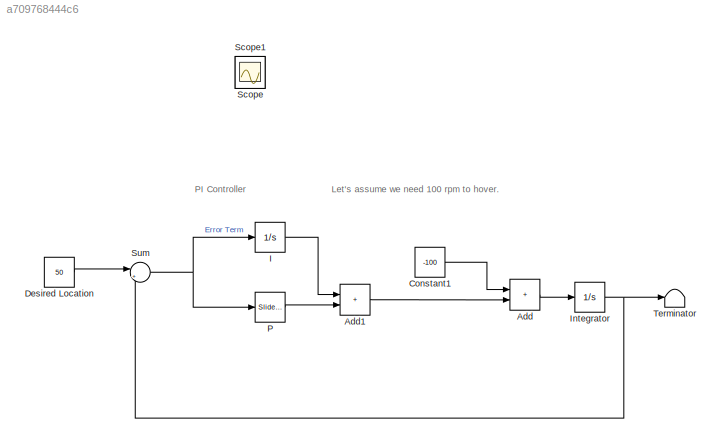
MODEL slx_a709768444c6
KIND model
CONFIG AbsTol = auto
CONFIG EnableMultiTasking = off
CONFIG FixedStep = 0.2
CONFIG MaxStep = auto
CONFIG MinStep = auto
CONFIG RelTol = 1e-3
CONFIG SampleTimeConstraint = Unconstrained
CONFIG SolverName = FixedStepAuto
CONFIG StartTime = 0.0
CONFIG StopTime = 50
BLOCK [Sum] Add
  IconShape = rectangular
BLOCK [Sum] Add1
  IconShape = rectangular
BLOCK [Constant] Constant1
  Value = -100
BLOCK [Constant] Desired Location
  Value = 50
BLOCK [Integrator] I
BLOCK [Integrator] Integrator
BLOCK [Reference] P  REF=simulink/Math
Operations/Slider
Gain
  SourceBlock = simulink/Math\nOperations/Slider\nGain
  SourceType = Slider Gain
BLOCK [Scope] Scope
  ActiveDisplayYMaximum = 86.081205775591656
  ActiveDisplayYMinimum = -52.467199180125249
  Floating = off
  GraphicalSettings = {"AxesScalingProperties":{"AlignXAxis":"Center","AlignYAxis":"Center","AutoScaleXAxisLimits":false,"AxesScaling":"Manual","AxesScalingNumUpdates":10,"ExpandOnly":true,"ScaleAxesLimitsAtStop":false,"XAxisDataRange":100,"YAxisDataRange":80},"DisplayProperties":{"ColorOrder":["auto","auto","auto","auto","auto","auto","auto","auto","auto","auto","auto","auto","auto","auto","auto","auto","auto","auto",...<+1958ch>
  IOType = viewer
  MultipleDisplayCache = [{"MaxYLimMag":162.49353,"MaxYLimReal":86.081205775591656,"MinYLimMag":0,"MinYLimReal":-52.467199180125249,"PlotAsMagnitudePhase":false,"ShowGrid":true,"ShowLegend":false,"Title":"%<SignalLabel>","YLabel":""}]
  NumInputPorts = 1
  ScopeFrameLocation = window
  WasSavedAsWebScope = on
  WindowPosition = [2070.000000,316.000000,560.000000,420.000000,]
BLOCK [Scope] Scope1
  ActiveDisplayYMaximum = 268.74829
  ActiveDisplayYMinimum = 81.26535
  DataLoggingVariableName = ScopeData1
  Floating = off
  GraphicalSettings = {"GraphicalSettings":{"LegacySettings":true,"Style":{"AxesScalingProperties":{"ScaleAxesLimitsAtStop":false},"Style":{"AxesColor":"[0 0 0]","ChannelNames":[""],"ColorOrder":"[1 0.909803921568627 0.392156862745098;0.149019607843137 0.549019607843137 0.866666666666667;0.96078431372549 0.466666666666667 0.16078431372549;0.286274509803922 0.858823529411765 0.250980392156863;0.752941176470588 0.3607843...<+545ch>
  IOType = viewer
  MultipleDisplayCache = [{"MaxYLimMag":268.74829,"MaxYLimReal":268.74829,"MinYLimMag":81.26535,"MinYLimReal":81.26535,"PlotAsMagnitudePhase":false,"ShowGrid":true,"ShowLegend":false,"Title":"%<SignalLabel>","YLabel":""}]
  NumInputPorts = 1
  WasSavedAsWebScope = on
BLOCK [Sum] Sum
  Inputs = |+-
BLOCK [Terminator] Terminator
ANNOTATION (root): Let's assume we need 100 rpm to hover.
ANNOTATION (root): PI Controller
LINE Add1:1 -> Add:2
LINE Add:1 -> Integrator:1
LINE Constant1:1 -> Add:1
LINE Desired Location:1 -> Sum:1
LINE I:1 -> Add1:1
NET Integrator:1 -> Sum:2, Terminator:1
LINE P:1 -> Add1:2
NET Sum:1 -> I:1, P:1
note: NET lines group one-source signal fan-out (src -> all destinations, sorted); 1:1 wires keep LINE
